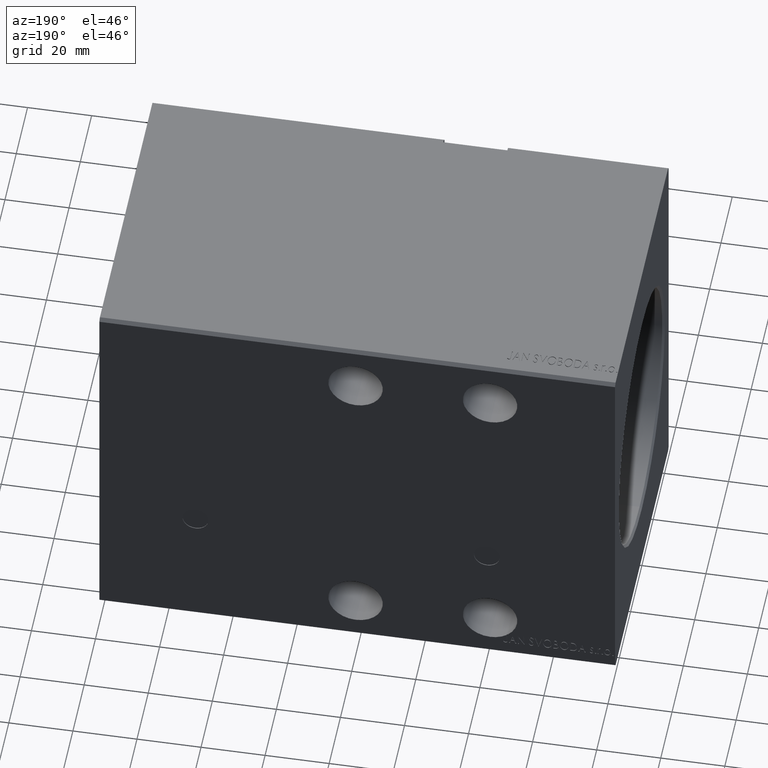
[diagram: clean part render]
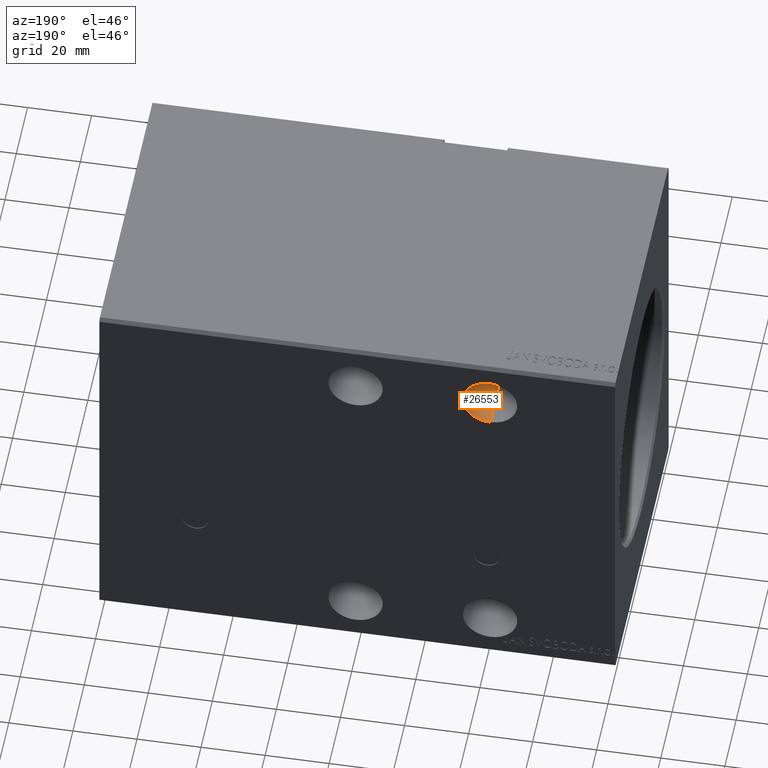
[diagram: same view with one face highlighted and labeled with its STEP entity id]
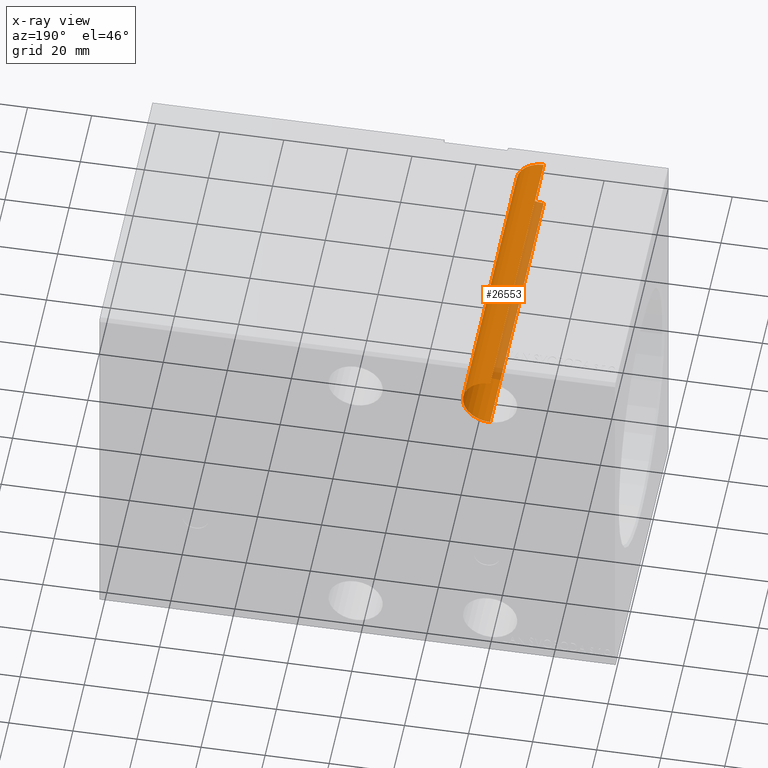
[diagram: x-ray of the same camera — body ghosted, the highlighted face saturated]
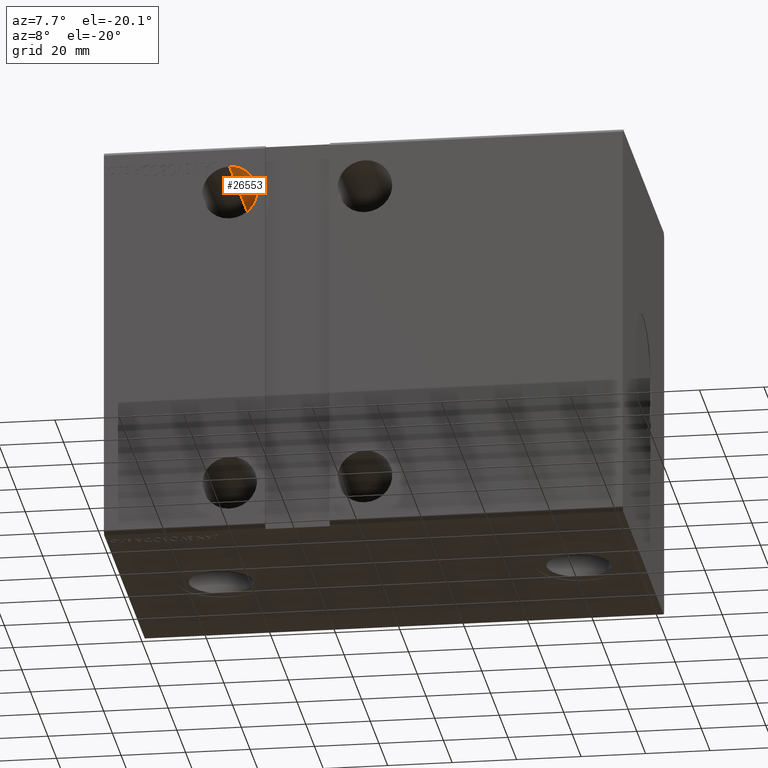
[diagram: same view with one face highlighted and labeled with its STEP entity id]
A machine part, auxiliary view. The second image highlights one B-rep face of the part: STEP entity #26553.
The next image is the same camera in x-ray: the body ghosted, the highlighted face saturated — about 21% of this face is hidden behind the body in this view.
A second angle (auxiliary view) of the same face is appended — the face is thin or edge-on in the first view.
In plain terms, the highlighted cylindrical surface (edge-blend (fillet) strip) has radius 8.5 mm, axis along (-0, -1, -0).
Its self-contained STEP definition (entity closure, byte-faithful):
#2286 = VECTOR ( 'NONE', #28011, 1000.000000000000000 ) ;
#3020 = LINE ( 'NONE', #35238, #18558 ) ;
#3885 = DIRECTION ( 'NONE',  ( -0.000000000000000000, 1.000000000000000000, 1.692413147294446216E-16 ) ) ;
#4969 = AXIS2_PLACEMENT_3D ( 'NONE', #19079, #35293, #5646 ) ;
#5646 = DIRECTION ( 'NONE',  ( 0.000000000000000000, 0.000000000000000000, -1.000000000000000000 ) ) ;
#8146 = CARTESIAN_POINT ( 'NONE',  ( 38.99999999999998579, 47.50000000000004974, 55.99999999999999289 ) ) ;
#8421 = EDGE_CURVE ( 'NONE', #31205, #21558, #36335, .T. ) ;
#9177 = ORIENTED_EDGE ( 'NONE', *, *, #38600, .T. ) ;
#9636 = CARTESIAN_POINT ( 'NONE',  ( 38.99999999999998579, -47.50000000000000711, 55.99999999999999289 ) ) ;
#11305 = CARTESIAN_POINT ( 'NONE',  ( 38.99999999999998579, 47.50000000000004974, 38.99999999999999289 ) ) ;
#15424 = DIRECTION ( 'NONE',  ( 0.000000000000000000, 0.000000000000000000, -1.000000000000000000 ) ) ;
#16031 = DIRECTION ( 'NONE',  ( -0.000000000000000000, -1.000000000000000000, -5.507058653894625237E-17 ) ) ;
#18558 = VECTOR ( 'NONE', #16031, 1000.000000000000000 ) ;
#18604 = AXIS2_PLACEMENT_3D ( 'NONE', #40142, #3885, #39738 ) ;
#19079 = CARTESIAN_POINT ( 'NONE',  ( 38.99999999999998579, 47.50000000000004974, 47.49999999999999289 ) ) ;
#21482 = ORIENTED_EDGE ( 'NONE', *, *, #40136, .F. ) ;
#21558 = VERTEX_POINT ( 'NONE', #30561 ) ;
#26553 = ADVANCED_FACE ( 'NONE', ( #37629 ), #34848, .F. ) ;
#26559 = CARTESIAN_POINT ( 'NONE',  ( 38.99999999999998579, 47.50000000000004974, 55.99999999999999289 ) ) ;
#27793 = LINE ( 'NONE', #8146, #2286 ) ;
#27913 = ORIENTED_EDGE ( 'NONE', *, *, #8421, .F. ) ;
#28011 = DIRECTION ( 'NONE',  ( -0.000000000000000000, -1.000000000000000000, -5.507058653894625237E-17 ) ) ;
#28034 = DIRECTION ( 'NONE',  ( -0.000000000000000000, -1.000000000000000000, -5.507058653894625237E-17 ) ) ;
#29218 = AXIS2_PLACEMENT_3D ( 'NONE', #31021, #28034, #15424 ) ;
#30561 = CARTESIAN_POINT ( 'NONE',  ( 38.99999999999998579, -47.50000000000000711, 38.99999999999997868 ) ) ;
#31021 = CARTESIAN_POINT ( 'NONE',  ( 38.99999999999998579, 47.50000000000004974, 47.49999999999999289 ) ) ;
#31205 = VERTEX_POINT ( 'NONE', #9636 ) ;
#32617 = EDGE_LOOP ( 'NONE', ( #38693, #21482, #9177, #27913 ) ) ;
#33538 = VERTEX_POINT ( 'NONE', #11305 ) ;
#34848 = CYLINDRICAL_SURFACE ( 'NONE', #29218, 8.500000000000000000 ) ;
#35051 = VERTEX_POINT ( 'NONE', #26559 ) ;
#35238 = CARTESIAN_POINT ( 'NONE',  ( 38.99999999999998579, 47.50000000000004974, 38.99999999999999289 ) ) ;
#35293 = DIRECTION ( 'NONE',  ( 0.000000000000000000, -1.000000000000000000, -5.507058653894625853E-17 ) ) ;
#35642 = CIRCLE ( 'NONE', #4969, 8.500000000000000000 ) ;
#36335 = CIRCLE ( 'NONE', #18604, 8.500000000000007105 ) ;
#37629 = FACE_OUTER_BOUND ( 'NONE', #32617, .T. ) ;
#38600 = EDGE_CURVE ( 'NONE', #33538, #21558, #3020, .T. ) ;
#38693 = ORIENTED_EDGE ( 'NONE', *, *, #41199, .F. ) ;
#39738 = DIRECTION ( 'NONE',  ( 0.000000000000000000, 0.000000000000000000, 1.000000000000000000 ) ) ;
#40136 = EDGE_CURVE ( 'NONE', #33538, #35051, #35642, .T. ) ;
#40142 = CARTESIAN_POINT ( 'NONE',  ( 38.99999999999998579, -47.50000000000000711, 47.49999999999998579 ) ) ;
#41199 = EDGE_CURVE ( 'NONE', #35051, #31205, #27793, .T. ) ;